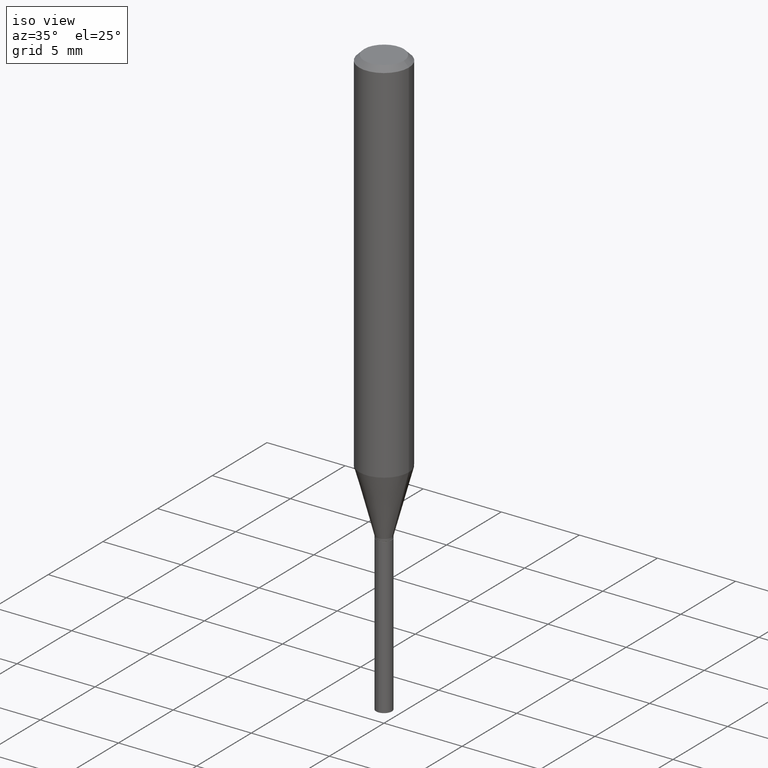
[diagram: clean part render]
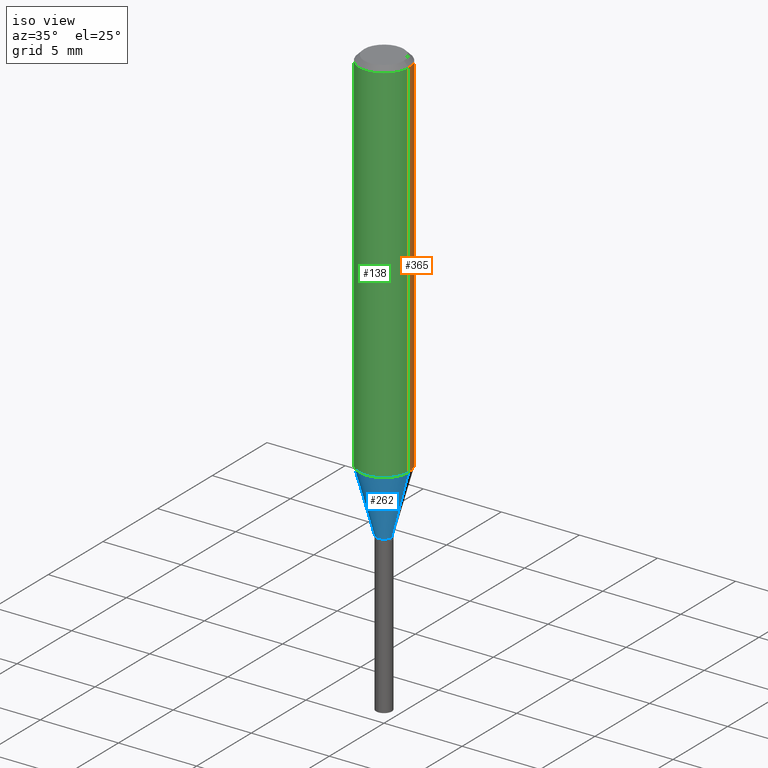
[diagram: same view with three faces highlighted in distinct colors, each labeled with its STEP entity id]
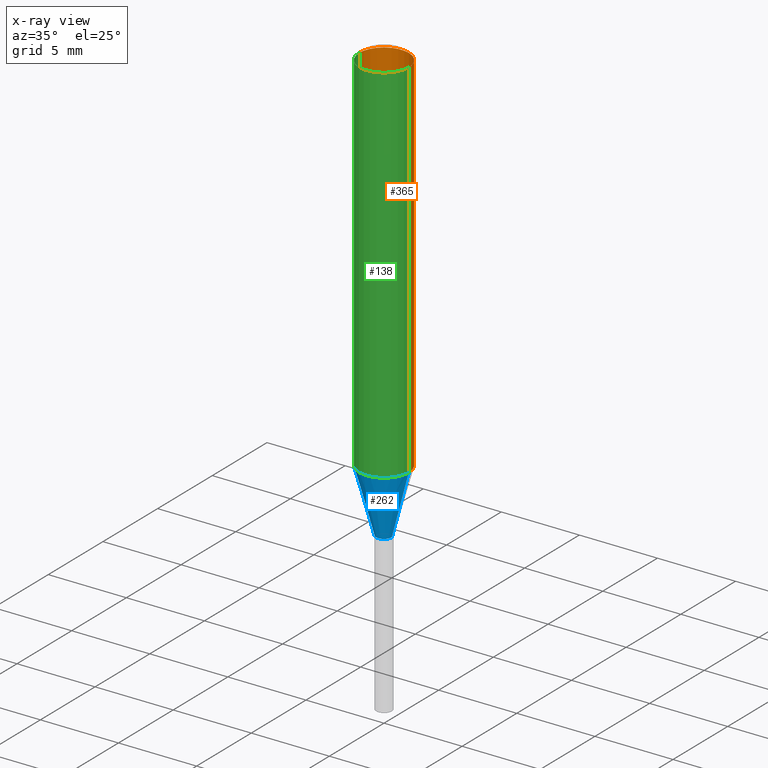
[diagram: x-ray of the same camera — body ghosted, the three highlighted faces saturated]
A machine part, iso view with three faces highlighted in distinct colors.
The next image is the same camera in x-ray (body ghosted, the three faces saturated) — at least one of them is partly hidden behind the body in this view.
Their STEP definitions:

[orange] entity #365 — the highlighted cylindrical surface (edge-blend (fillet) strip) has radius 1.5875 mm, axis along (-0, 0, 1).
#4 = EDGE_CURVE ( 'NONE', #133, #46, #37, .T. ) ;
#8 = CARTESIAN_POINT ( 'NONE',  ( 0.06250000000000011102, -3.698764390073353980E-15, -0.9343682254360521355 ) ) ;
#37 = LINE ( 'NONE', #297, #469 ) ;
#46 = VERTEX_POINT ( 'NONE', #102 ) ;
#47 = DIRECTION ( 'NONE',  ( 1.000000000000000000, -6.982962677686265922E-15, 0.000000000000000000 ) ) ;
#48 = ORIENTED_EDGE ( 'NONE', *, *, #339, .T. ) ;
#74 = DIRECTION ( 'NONE',  ( -2.445468806185136597E-29, 3.491481338843145583E-15, 1.000000000000000000 ) ) ;
#102 = CARTESIAN_POINT ( 'NONE',  ( 0.06250000000000000000, -4.800786840909312308E-16, -0.01250000000000008049 ) ) ;
#124 = ORIENTED_EDGE ( 'NONE', *, *, #4, .F. ) ;
#133 = VERTEX_POINT ( 'NONE', #8 ) ;
#140 = EDGE_CURVE ( 'NONE', #46, #433, #486, .T. ) ;
#193 = DIRECTION ( 'NONE',  ( 1.000000000000000000, -6.982962677686266711E-15, 0.000000000000000000 ) ) ;
#200 = DIRECTION ( 'NONE',  ( -2.445468806185136597E-29, 3.491481338843145583E-15, 1.000000000000000000 ) ) ;
#236 = ORIENTED_EDGE ( 'NONE', *, *, #140, .F. ) ;
#243 = EDGE_CURVE ( 'NONE', #277, #433, #468, .T. ) ;
#267 = CARTESIAN_POINT ( 'NONE',  ( -0.06250000000000005551, 4.440892098500630106E-16, -3.074334431409318916E-30 ) ) ;
#268 = CYLINDRICAL_SURFACE ( 'NONE', #386, 0.06250000000000005551 ) ;
#277 = VERTEX_POINT ( 'NONE', #458 ) ;
#287 = ORIENTED_EDGE ( 'NONE', *, *, #243, .T. ) ;
#290 = DIRECTION ( 'NONE',  ( -2.445468806185136877E-29, 3.491481338843145188E-15, 1.000000000000000000 ) ) ;
#297 = CARTESIAN_POINT ( 'NONE',  ( 0.06250000000000005551, -4.364351673553920638E-16, 3.047610484872462323E-30 ) ) ;
#298 = VECTOR ( 'NONE', #423, 39.37007874015748143 ) ;
#336 = EDGE_LOOP ( 'NONE', ( #48, #287, #236, #124 ) ) ;
#339 = EDGE_CURVE ( 'NONE', #133, #277, #470, .T. ) ;
#357 = FACE_OUTER_BOUND ( 'NONE', #336, .T. ) ;
#365 = ADVANCED_FACE ( 'NONE', ( #357 ), #268, .T. ) ;
#373 = DIRECTION ( 'NONE',  ( 1.000000000000000000, -6.982962677686266711E-15, 4.876176775795935232E-29 ) ) ;
#375 = CARTESIAN_POINT ( 'NONE',  ( 2.284968348794427209E-29, -3.262329222717961522E-15, -0.9343682254360521355 ) ) ;
#386 = AXIS2_PLACEMENT_3D ( 'NONE', #424, #200, #373 ) ;
#387 = CARTESIAN_POINT ( 'NONE',  ( 3.056836007731440539E-31, -4.364351673553960451E-17, -0.01250000000000008049 ) ) ;
#401 = CARTESIAN_POINT ( 'NONE',  ( -0.06250000000000000000, -1.208897159876686939E-15, -0.01250000000000008049 ) ) ;
#423 = DIRECTION ( 'NONE',  ( -2.445468806185136877E-29, 3.491481338843145188E-15, 1.000000000000000000 ) ) ;
#424 = CARTESIAN_POINT ( 'NONE',  ( 0.000000000000000000, 0.000000000000000000, 0.000000000000000000 ) ) ;
#431 = DIRECTION ( 'NONE',  ( -2.445468806185136597E-29, 3.491481338843145583E-15, 1.000000000000000000 ) ) ;
#433 = VERTEX_POINT ( 'NONE', #401 ) ;
#453 = AXIS2_PLACEMENT_3D ( 'NONE', #375, #74, #47 ) ;
#458 = CARTESIAN_POINT ( 'NONE',  ( -0.06250000000000011102, -2.818240012867898117E-15, -0.9343682254360521355 ) ) ;
#460 = AXIS2_PLACEMENT_3D ( 'NONE', #387, #431, #193 ) ;
#468 = LINE ( 'NONE', #267, #298 ) ;
#469 = VECTOR ( 'NONE', #290, 39.37007874015748143 ) ;
#470 = CIRCLE ( 'NONE', #453, 0.06250000000000011102 ) ;
#486 = CIRCLE ( 'NONE', #460, 0.06250000000000000000 ) ;

[blue] entity #262 — the highlighted conical surface has half-angle 15 deg.
#8 = CARTESIAN_POINT ( 'NONE',  ( 0.06250000000000011102, -3.698764390073353980E-15, -0.9343682254360521355 ) ) ;
#9 = CARTESIAN_POINT ( 'NONE',  ( 2.675587420847158338E-29, -3.820029732828286359E-15, -1.094100000000000295 ) ) ;
#28 = EDGE_LOOP ( 'NONE', ( #100, #329, #480, #272 ) ) ;
#42 = CIRCLE ( 'NONE', #427, 0.06250000000000011102 ) ;
#58 = VERTEX_POINT ( 'NONE', #219 ) ;
#70 = AXIS2_PLACEMENT_3D ( 'NONE', #465, #426, #83 ) ;
#83 = DIRECTION ( 'NONE',  ( 1.000000000000000000, -6.982962677686278543E-15, 0.000000000000000000 ) ) ;
#100 = ORIENTED_EDGE ( 'NONE', *, *, #217, .F. ) ;
#111 = DIRECTION ( 'NONE',  ( -2.445468806185136597E-29, 3.491481338843145583E-15, 1.000000000000000000 ) ) ;
#116 = LINE ( 'NONE', #190, #358 ) ;
#133 = VERTEX_POINT ( 'NONE', #8 ) ;
#136 = CONICAL_SURFACE ( 'NONE', #70, 0.01969999999999999876, 0.2617993877991499629 ) ;
#139 = DIRECTION ( 'NONE',  ( 1.000000000000000000, -6.982962677686265922E-15, 0.000000000000000000 ) ) ;
#145 = CARTESIAN_POINT ( 'NONE',  ( 2.284968348794427209E-29, -3.262329222717961522E-15, -0.9343682254360521355 ) ) ;
#152 = EDGE_CURVE ( 'NONE', #234, #58, #338, .T. ) ;
#167 = CARTESIAN_POINT ( 'NONE',  ( 0.01969999999999999876, -3.957594097578706363E-15, -1.094100000000000295 ) ) ;
#177 = DIRECTION ( 'NONE',  ( 0.2588190451025212391, 1.565188264969622362E-15, 0.9659258262890679791 ) ) ;
#190 = CARTESIAN_POINT ( 'NONE',  ( -0.01969999999999999876, -3.680052813883547051E-15, -1.094100000000000295 ) ) ;
#217 = EDGE_CURVE ( 'NONE', #234, #277, #116, .T. ) ;
#219 = CARTESIAN_POINT ( 'NONE',  ( 0.01969999999999999876, -3.957594097578706363E-15, -1.094100000000000295 ) ) ;
#234 = VERTEX_POINT ( 'NONE', #363 ) ;
#235 = DIRECTION ( 'NONE',  ( -0.2588190451025212391, 5.211531920934549464E-15, 0.9659258262890679791 ) ) ;
#262 = ADVANCED_FACE ( 'NONE', ( #310 ), #136, .T. ) ;
#272 = ORIENTED_EDGE ( 'NONE', *, *, #285, .F. ) ;
#277 = VERTEX_POINT ( 'NONE', #458 ) ;
#280 = AXIS2_PLACEMENT_3D ( 'NONE', #9, #308, #391 ) ;
#285 = EDGE_CURVE ( 'NONE', #277, #133, #42, .T. ) ;
#294 = LINE ( 'NONE', #167, #419 ) ;
#308 = DIRECTION ( 'NONE',  ( -2.445468806185136597E-29, 3.491481338843145583E-15, 1.000000000000000000 ) ) ;
#310 = FACE_OUTER_BOUND ( 'NONE', #28, .T. ) ;
#329 = ORIENTED_EDGE ( 'NONE', *, *, #152, .T. ) ;
#338 = CIRCLE ( 'NONE', #280, 0.01969999999999999876 ) ;
#358 = VECTOR ( 'NONE', #235, 39.37007874015748854 ) ;
#363 = CARTESIAN_POINT ( 'NONE',  ( -0.01969999999999999876, -3.689479813498422381E-15, -1.094100000000000295 ) ) ;
#372 = EDGE_CURVE ( 'NONE', #58, #133, #294, .T. ) ;
#391 = DIRECTION ( 'NONE',  ( 1.000000000000000000, -6.982962677686278543E-15, 0.000000000000000000 ) ) ;
#419 = VECTOR ( 'NONE', #177, 39.37007874015748854 ) ;
#426 = DIRECTION ( 'NONE',  ( -2.445468806185136597E-29, 3.491481338843145583E-15, 1.000000000000000000 ) ) ;
#427 = AXIS2_PLACEMENT_3D ( 'NONE', #145, #111, #139 ) ;
#458 = CARTESIAN_POINT ( 'NONE',  ( -0.06250000000000011102, -2.818240012867898117E-15, -0.9343682254360521355 ) ) ;
#465 = CARTESIAN_POINT ( 'NONE',  ( 2.675587420847158338E-29, -3.820029732828286359E-15, -1.094100000000000295 ) ) ;
#480 = ORIENTED_EDGE ( 'NONE', *, *, #372, .T. ) ;

[green] entity #138 — the highlighted cylindrical surface (edge-blend (fillet) strip) has radius 1.5875 mm, axis along (-0, 0, 1).
#4 = EDGE_CURVE ( 'NONE', #133, #46, #37, .T. ) ;
#8 = CARTESIAN_POINT ( 'NONE',  ( 0.06250000000000011102, -3.698764390073353980E-15, -0.9343682254360521355 ) ) ;
#37 = LINE ( 'NONE', #297, #469 ) ;
#42 = CIRCLE ( 'NONE', #427, 0.06250000000000011102 ) ;
#44 = AXIS2_PLACEMENT_3D ( 'NONE', #378, #462, #71 ) ;
#46 = VERTEX_POINT ( 'NONE', #102 ) ;
#71 = DIRECTION ( 'NONE',  ( 1.000000000000000000, -6.982962677686266711E-15, 0.000000000000000000 ) ) ;
#102 = CARTESIAN_POINT ( 'NONE',  ( 0.06250000000000000000, -4.800786840909312308E-16, -0.01250000000000008049 ) ) ;
#111 = DIRECTION ( 'NONE',  ( -2.445468806185136597E-29, 3.491481338843145583E-15, 1.000000000000000000 ) ) ;
#121 = EDGE_LOOP ( 'NONE', ( #216, #184, #320, #166 ) ) ;
#123 = CARTESIAN_POINT ( 'NONE',  ( 0.000000000000000000, 0.000000000000000000, 0.000000000000000000 ) ) ;
#133 = VERTEX_POINT ( 'NONE', #8 ) ;
#138 = ADVANCED_FACE ( 'NONE', ( #273 ), #389, .T. ) ;
#139 = DIRECTION ( 'NONE',  ( 1.000000000000000000, -6.982962677686265922E-15, 0.000000000000000000 ) ) ;
#145 = CARTESIAN_POINT ( 'NONE',  ( 2.284968348794427209E-29, -3.262329222717961522E-15, -0.9343682254360521355 ) ) ;
#147 = CIRCLE ( 'NONE', #44, 0.06250000000000000000 ) ;
#166 = ORIENTED_EDGE ( 'NONE', *, *, #330, .F. ) ;
#184 = ORIENTED_EDGE ( 'NONE', *, *, #285, .T. ) ;
#216 = ORIENTED_EDGE ( 'NONE', *, *, #243, .F. ) ;
#229 = DIRECTION ( 'NONE',  ( 1.000000000000000000, -6.982962677686266711E-15, 4.876176775795935232E-29 ) ) ;
#243 = EDGE_CURVE ( 'NONE', #277, #433, #468, .T. ) ;
#267 = CARTESIAN_POINT ( 'NONE',  ( -0.06250000000000005551, 4.440892098500630106E-16, -3.074334431409318916E-30 ) ) ;
#273 = FACE_OUTER_BOUND ( 'NONE', #121, .T. ) ;
#277 = VERTEX_POINT ( 'NONE', #458 ) ;
#285 = EDGE_CURVE ( 'NONE', #277, #133, #42, .T. ) ;
#290 = DIRECTION ( 'NONE',  ( -2.445468806185136877E-29, 3.491481338843145188E-15, 1.000000000000000000 ) ) ;
#297 = CARTESIAN_POINT ( 'NONE',  ( 0.06250000000000005551, -4.364351673553920638E-16, 3.047610484872462323E-30 ) ) ;
#298 = VECTOR ( 'NONE', #423, 39.37007874015748143 ) ;
#320 = ORIENTED_EDGE ( 'NONE', *, *, #4, .T. ) ;
#322 = DIRECTION ( 'NONE',  ( -2.445468806185136597E-29, 3.491481338843145583E-15, 1.000000000000000000 ) ) ;
#330 = EDGE_CURVE ( 'NONE', #433, #46, #147, .T. ) ;
#378 = CARTESIAN_POINT ( 'NONE',  ( 3.056836007731440539E-31, -4.364351673553960451E-17, -0.01250000000000008049 ) ) ;
#389 = CYLINDRICAL_SURFACE ( 'NONE', #443, 0.06250000000000005551 ) ;
#401 = CARTESIAN_POINT ( 'NONE',  ( -0.06250000000000000000, -1.208897159876686939E-15, -0.01250000000000008049 ) ) ;
#423 = DIRECTION ( 'NONE',  ( -2.445468806185136877E-29, 3.491481338843145188E-15, 1.000000000000000000 ) ) ;
#427 = AXIS2_PLACEMENT_3D ( 'NONE', #145, #111, #139 ) ;
#433 = VERTEX_POINT ( 'NONE', #401 ) ;
#443 = AXIS2_PLACEMENT_3D ( 'NONE', #123, #322, #229 ) ;
#458 = CARTESIAN_POINT ( 'NONE',  ( -0.06250000000000011102, -2.818240012867898117E-15, -0.9343682254360521355 ) ) ;
#462 = DIRECTION ( 'NONE',  ( -2.445468806185136597E-29, 3.491481338843145583E-15, 1.000000000000000000 ) ) ;
#468 = LINE ( 'NONE', #267, #298 ) ;
#469 = VECTOR ( 'NONE', #290, 39.37007874015748143 ) ;